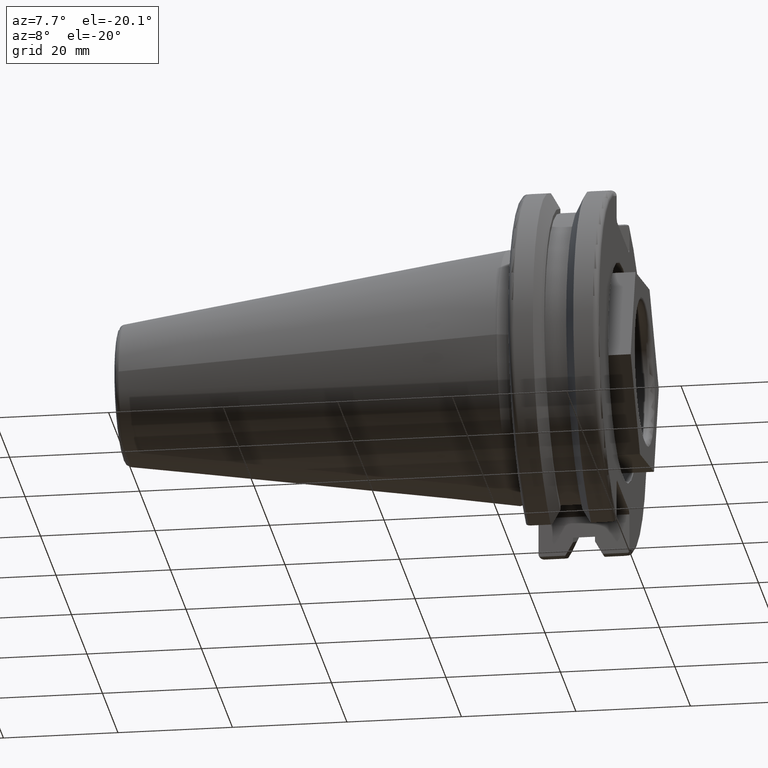
[diagram: clean part render]
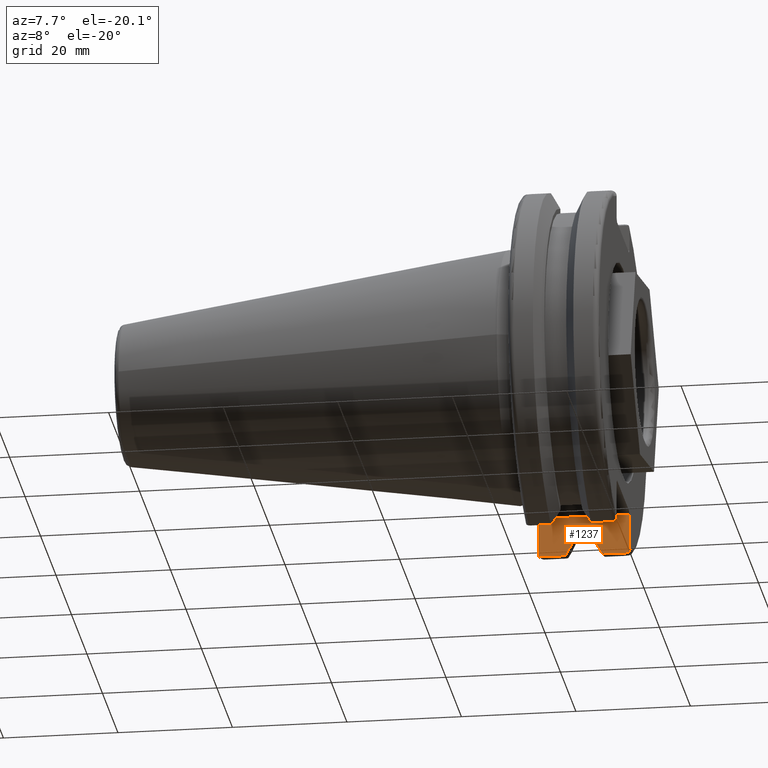
[diagram: same view with one face highlighted and labeled with its STEP entity id]
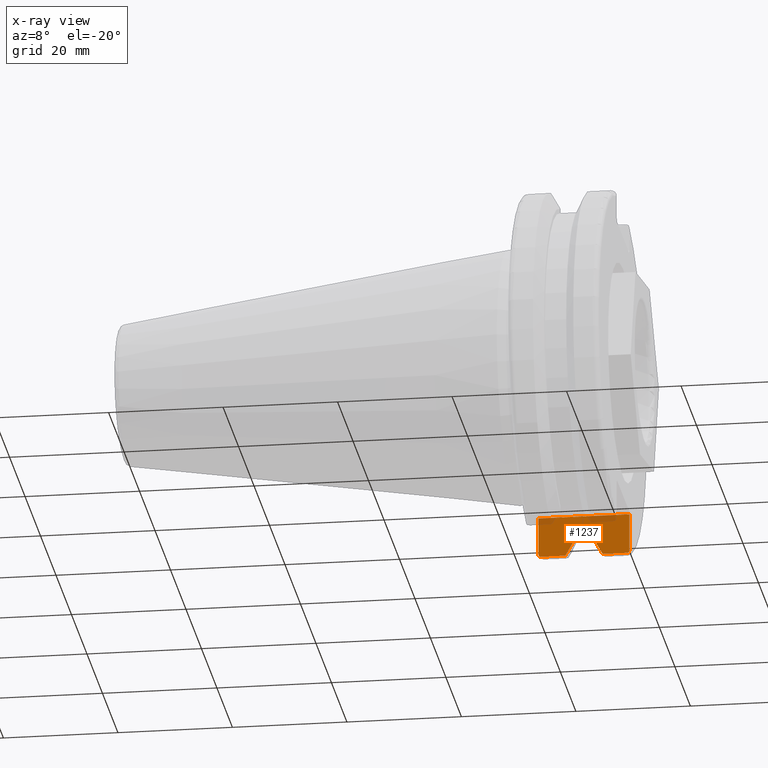
[diagram: x-ray of the same camera — body ghosted, the highlighted face saturated]
A machine part, auxiliary view. The second image highlights one B-rep face of the part: STEP entity #1237.
The next image is the same camera in x-ray: the body ghosted, the highlighted face saturated — about 9% of this face is hidden behind the body in this view.
In plain terms, the highlighted planar face has unit normal (-0, 1, 0).
Its self-contained STEP definition (entity closure, byte-faithful):
#28=(
BOUNDED_CURVE()
B_SPLINE_CURVE(2,(#2006,#2007,#2008),.UNSPECIFIED.,.F.,.F.)
B_SPLINE_CURVE_WITH_KNOTS((3,3),(0.,0.276549142796606),.UNSPECIFIED.)
CURVE()
GEOMETRIC_REPRESENTATION_ITEM()
RATIONAL_B_SPLINE_CURVE((1.,1.00095203903674,1.00031614444931))
REPRESENTATION_ITEM('')
);
#29=(
BOUNDED_CURVE()
B_SPLINE_CURVE(2,(#2015,#2016,#2017),.UNSPECIFIED.,.F.,.F.)
B_SPLINE_CURVE_WITH_KNOTS((3,3),(0.0550586467388169,0.33160778953585),
 .UNSPECIFIED.)
CURVE()
GEOMETRIC_REPRESENTATION_ITEM()
RATIONAL_B_SPLINE_CURVE((1.00031614444917,1.00095203903631,1.))
REPRESENTATION_ITEM('')
);
#44=B_SPLINE_CURVE_WITH_KNOTS('',3,(#1959,#1960,#1961,#1962,#1963,#1964),
 .UNSPECIFIED.,.F.,.F.,(4,2,4),(0.452741154494498,0.491581665024872,0.505824174364157),
 .UNSPECIFIED.);
#47=B_SPLINE_CURVE_WITH_KNOTS('',3,(#1997,#1998,#1999,#2000,#2001,#2002),
 .UNSPECIFIED.,.F.,.F.,(4,2,4),(0.0977210450333169,0.111963554372601,0.150804064902975),
 .UNSPECIFIED.);
#84=PLANE('',#1396);
#143=FACE_OUTER_BOUND('',#222,.T.);
#222=EDGE_LOOP('',(#899,#900,#901,#902,#903,#904,#905,#906,#907,#908,#909,
#910));
#302=LINE('',#1935,#393);
#308=LINE('',#1986,#399);
#310=LINE('',#1994,#401);
#311=LINE('',#1995,#402);
#312=LINE('',#2004,#403);
#313=LINE('',#2010,#404);
#314=LINE('',#2012,#405);
#315=LINE('',#2014,#406);
#393=VECTOR('',#1568,10.);
#399=VECTOR('',#1586,10.);
#401=VECTOR('',#1590,10.);
#402=VECTOR('',#1591,10.);
#403=VECTOR('',#1592,10.);
#404=VECTOR('',#1593,10.);
#405=VECTOR('',#1594,10.);
#406=VECTOR('',#1595,10.);
#554=VERTEX_POINT('',#1932);
#555=VERTEX_POINT('',#1934);
#562=VERTEX_POINT('',#1956);
#563=VERTEX_POINT('',#1958);
#566=VERTEX_POINT('',#1985);
#568=VERTEX_POINT('',#1993);
#569=VERTEX_POINT('',#1996);
#570=VERTEX_POINT('',#2003);
#571=VERTEX_POINT('',#2005);
#572=VERTEX_POINT('',#2009);
#573=VERTEX_POINT('',#2011);
#574=VERTEX_POINT('',#2013);
#681=EDGE_CURVE('',#554,#555,#302,.T.);
#690=EDGE_CURVE('',#562,#563,#44,.T.);
#694=EDGE_CURVE('',#563,#566,#308,.T.);
#697=EDGE_CURVE('',#568,#562,#310,.T.);
#698=EDGE_CURVE('',#555,#568,#311,.T.);
#699=EDGE_CURVE('',#569,#554,#47,.T.);
#700=EDGE_CURVE('',#570,#569,#312,.T.);
#701=EDGE_CURVE('',#571,#570,#28,.T.);
#702=EDGE_CURVE('',#572,#571,#313,.T.);
#703=EDGE_CURVE('',#573,#572,#314,.T.);
#704=EDGE_CURVE('',#574,#573,#315,.T.);
#705=EDGE_CURVE('',#566,#574,#29,.T.);
#899=ORIENTED_EDGE('',*,*,#690,.F.);
#900=ORIENTED_EDGE('',*,*,#697,.F.);
#901=ORIENTED_EDGE('',*,*,#698,.F.);
#902=ORIENTED_EDGE('',*,*,#681,.F.);
#903=ORIENTED_EDGE('',*,*,#699,.F.);
#904=ORIENTED_EDGE('',*,*,#700,.F.);
#905=ORIENTED_EDGE('',*,*,#701,.F.);
#906=ORIENTED_EDGE('',*,*,#702,.F.);
#907=ORIENTED_EDGE('',*,*,#703,.F.);
#908=ORIENTED_EDGE('',*,*,#704,.F.);
#909=ORIENTED_EDGE('',*,*,#705,.F.);
#910=ORIENTED_EDGE('',*,*,#694,.F.);
#1237=ADVANCED_FACE('',(#143),#84,.F.);
#1396=AXIS2_PLACEMENT_3D('',#1992,#1588,#1589);
#1568=DIRECTION('',(0.,0.,1.));
#1586=DIRECTION('',(-1.,-1.31581988103722E-16,0.));
#1588=DIRECTION('center_axis',(-1.31581988103722E-16,1.,0.));
#1589=DIRECTION('ref_axis',(1.,1.31581988103722E-16,0.));
#1590=DIRECTION('',(0.,0.,-1.));
#1591=DIRECTION('',(1.,1.31581988103722E-16,0.));
#1592=DIRECTION('',(-1.,-1.31581988103722E-16,0.));
#1593=DIRECTION('',(0.,0.,-1.));
#1594=DIRECTION('',(-1.,0.,0.));
#1595=DIRECTION('',(0.,0.,1.));
#1932=CARTESIAN_POINT('',(3.175,8.18999999999999,-29.6392712461019));
#1934=CARTESIAN_POINT('',(3.175,8.18999999999999,-23.1));
#1935=CARTESIAN_POINT('',(3.175,8.18999999999999,-11.3));
#1956=CARTESIAN_POINT('',(19.05,8.19,-29.6392712461019));
#1958=CARTESIAN_POINT('',(18.9058722749097,8.19,-30.1755016258903));
#1959=CARTESIAN_POINT('Ctrl Pts',(19.05,8.19,-29.6392712461019));
#1960=CARTESIAN_POINT('Ctrl Pts',(19.05,8.19,-29.7687396145364));
#1961=CARTESIAN_POINT('Ctrl Pts',(19.020485567083,8.19,-29.9212724384851));
#1962=CARTESIAN_POINT('Ctrl Pts',(18.9539643471756,8.19,-30.0852355256475));
#1963=CARTESIAN_POINT('Ctrl Pts',(18.9318163728133,8.19,-30.131014531546));
#1964=CARTESIAN_POINT('Ctrl Pts',(18.9058722749097,8.19,-30.1755016258903));
#1985=CARTESIAN_POINT('',(14.3744146964874,8.19,-30.1755016258903));
#1986=CARTESIAN_POINT('',(16.8515833845378,8.19,-30.1755016258903));
#1992=CARTESIAN_POINT('Origin',(3.175,8.19,-22.6));
#1993=CARTESIAN_POINT('',(19.05,8.19,-23.1));
#1994=CARTESIAN_POINT('',(19.05,8.19,-11.3));
#1995=CARTESIAN_POINT('',(9.44125,8.19,-23.1));
#1996=CARTESIAN_POINT('',(3.31912772509028,8.19,-30.1755016258903));
#1997=CARTESIAN_POINT('Ctrl Pts',(3.31912772509028,8.19,-30.1755016258903));
#1998=CARTESIAN_POINT('Ctrl Pts',(3.29318362718666,8.19,-30.131014531546));
#1999=CARTESIAN_POINT('Ctrl Pts',(3.27103565282437,8.19,-30.0852355256475));
#2000=CARTESIAN_POINT('Ctrl Pts',(3.20451443291695,8.19,-29.9212724384851));
#2001=CARTESIAN_POINT('Ctrl Pts',(3.175,8.19,-29.7687396145364));
#2002=CARTESIAN_POINT('Ctrl Pts',(3.175,8.19,-29.6392712461019));
#2003=CARTESIAN_POINT('',(7.87958530351256,8.19,-30.1755016258903));
#2004=CARTESIAN_POINT('',(5.38791661546218,8.19,-30.1755016258903));
#2005=CARTESIAN_POINT('',(9.212,8.19,-27.7771386827498));
#2006=CARTESIAN_POINT('Ctrl Pts',(9.212,8.19,-27.7771386827498));
#2007=CARTESIAN_POINT('Ctrl Pts',(8.57336356152746,8.19,-28.9303689539641));
#2008=CARTESIAN_POINT('Ctrl Pts',(7.87958530351256,8.19,-30.1755016258903));
#2009=CARTESIAN_POINT('',(9.212,8.19,-26.932255754021));
#2010=CARTESIAN_POINT('',(9.212,8.18999999999999,-11.3));
#2011=CARTESIAN_POINT('',(13.042,8.19,-26.932255754021));
#2012=CARTESIAN_POINT('',(11.127,8.19,-26.932255754021));
#2013=CARTESIAN_POINT('',(13.042,8.19,-27.7771386827498));
#2014=CARTESIAN_POINT('',(13.042,8.19,-11.3));
#2015=CARTESIAN_POINT('Ctrl Pts',(14.3744146964874,8.19,-30.1755016258903));
#2016=CARTESIAN_POINT('Ctrl Pts',(13.6806364384668,8.19,-28.9303689539538));
#2017=CARTESIAN_POINT('Ctrl Pts',(13.042,8.19,-27.7771386827498));